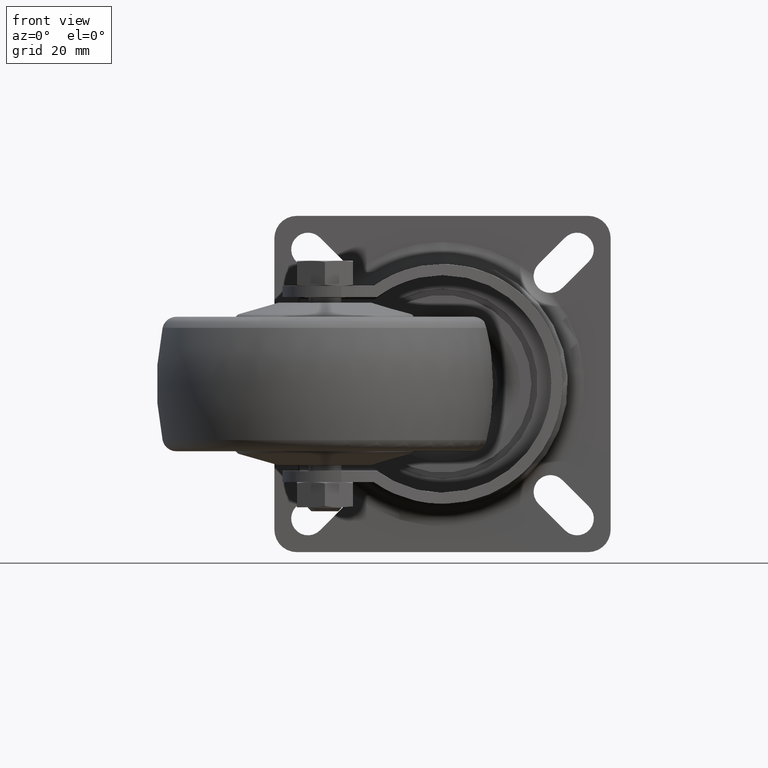
[diagram: clean part render]
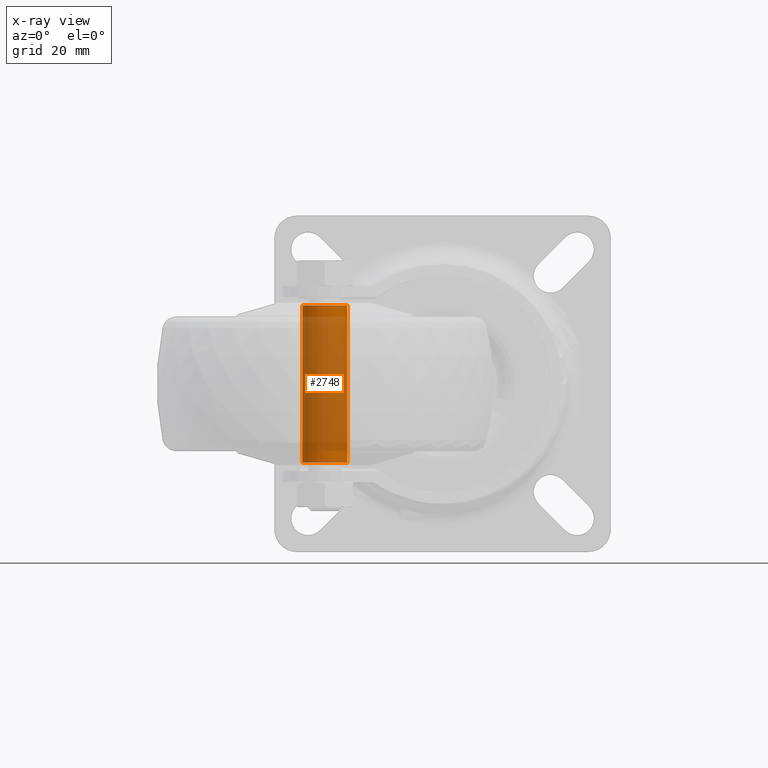
[diagram: x-ray — body ghosted, one internal face saturated and labeled with its STEP entity id]
A machine part, front view, then the same camera in x-ray: the body is ghosted and one INTERNAL B-rep face — a face not visible from any outside direction — is saturated and labeled: STEP entity #2748.
In plain terms, the highlighted cylindrical surface (bore or boss wall) has radius 4 mm, axis along (0, 0, -1).
Its self-contained STEP definition (entity closure, byte-faithful):
#173=LINE('',#4600,#304);
#304=VECTOR('',#3654,4.);
#426=CYLINDRICAL_SURFACE('',#3159,4.);
#611=FACE_OUTER_BOUND('',#796,.T.);
#796=EDGE_LOOP('',(#2015,#2016,#2017,#2018));
#991=CIRCLE('',#3153,4.);
#994=CIRCLE('',#3158,4.);
#1238=VERTEX_POINT('',#4588);
#1241=VERTEX_POINT('',#4597);
#1524=EDGE_CURVE('',#1238,#1238,#991,.T.);
#1528=EDGE_CURVE('',#1241,#1241,#994,.T.);
#1529=EDGE_CURVE('',#1241,#1238,#173,.T.);
#2015=ORIENTED_EDGE('',*,*,#1528,.F.);
#2016=ORIENTED_EDGE('',*,*,#1529,.T.);
#2017=ORIENTED_EDGE('',*,*,#1524,.T.);
#2018=ORIENTED_EDGE('',*,*,#1529,.F.);
#2748=ADVANCED_FACE('',(#611),#426,.T.);
#3153=AXIS2_PLACEMENT_3D('',#4589,#3639,#3640);
#3158=AXIS2_PLACEMENT_3D('',#4598,#3650,#3651);
#3159=AXIS2_PLACEMENT_3D('',#4599,#3652,#3653);
#3639=DIRECTION('center_axis',(1.,0.,0.));
#3640=DIRECTION('ref_axis',(0.,0.,-1.));
#3650=DIRECTION('center_axis',(1.,0.,0.));
#3651=DIRECTION('ref_axis',(0.,0.,-1.));
#3652=DIRECTION('center_axis',(1.,0.,0.));
#3653=DIRECTION('ref_axis',(0.,0.,-1.));
#3654=DIRECTION('',(-1.,0.,0.));
#4588=CARTESIAN_POINT('',(-14.,-4.89858719658941E-16,4.));
#4589=CARTESIAN_POINT('Origin',(-14.,0.,0.));
#4597=CARTESIAN_POINT('',(14.,-4.89858719658941E-16,4.));
#4598=CARTESIAN_POINT('Origin',(14.,0.,0.));
#4599=CARTESIAN_POINT('Origin',(14.,0.,0.));
#4600=CARTESIAN_POINT('',(14.,-4.89858719658941E-16,4.));